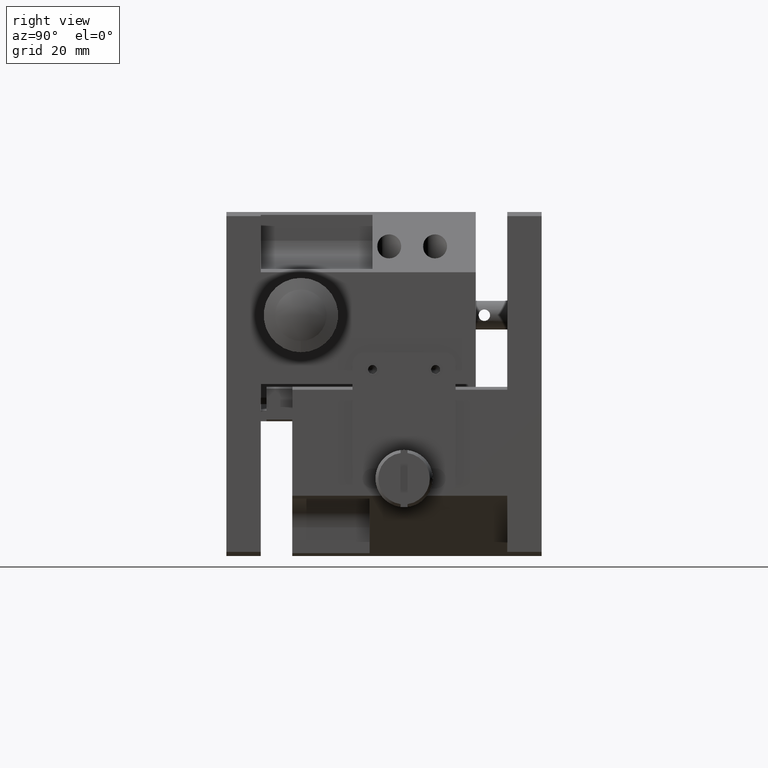
[diagram: clean part render]
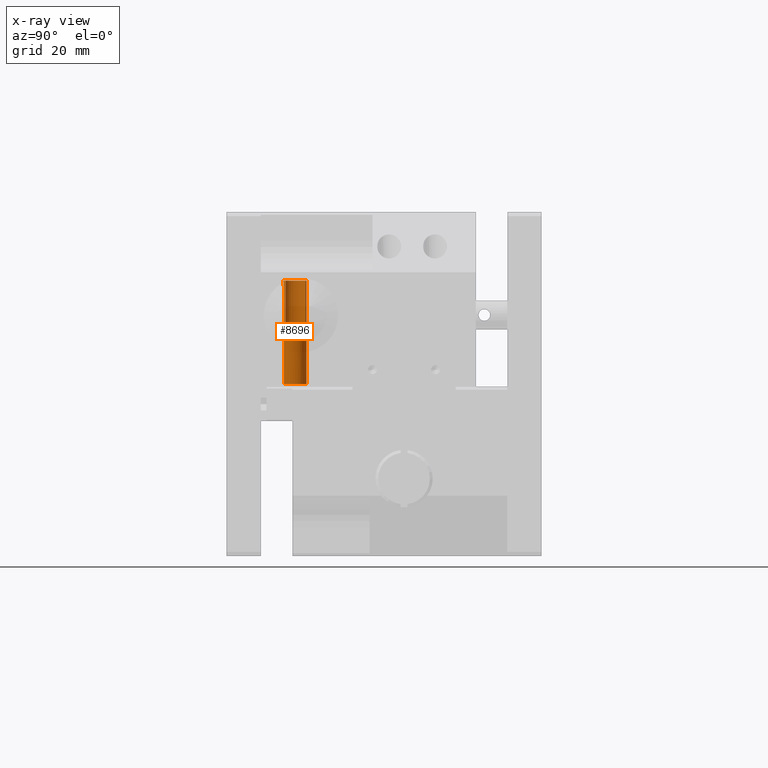
[diagram: x-ray — body ghosted, one internal face saturated and labeled with its STEP entity id]
A machine part, right view, then the same camera in x-ray: the body is ghosted and one INTERNAL B-rep face — a face not visible from any outside direction — is saturated and labeled: STEP entity #8696.
In plain terms, the highlighted cylindrical surface (bore or boss wall) has radius 2 mm, axis along (0, 0, 1).
Its self-contained STEP definition (entity closure, byte-faithful):
#281 = FACE_OUTER_BOUND ( 'NONE', #12027, .T. ) ;
#478 = CARTESIAN_POINT ( 'NONE',  ( 9.499999999999994671, 10.26794919243111792, -22.00000000000000000 ) ) ;
#660 = CARTESIAN_POINT ( 'NONE',  ( 9.499999999999994671, 13.73205080756888208, -22.00000000000000000 ) ) ;
#824 = LINE ( 'NONE', #884, #11925 ) ;
#884 = CARTESIAN_POINT ( 'NONE',  ( 9.499999999999989342, 10.26794919243111615, -12.00000000000000000 ) ) ;
#916 = FACE_OUTER_BOUND ( 'NONE', #9791, .T. ) ;
#1656 = CARTESIAN_POINT ( 'NONE',  ( 9.499999999999996447, 13.73205080756888030, -12.00000000000000000 ) ) ;
#1721 = CIRCLE ( 'NONE', #8592, 2.000000000000000000 ) ;
#1735 = CIRCLE ( 'NONE', #9204, 2.000000000000000000 ) ;
#2077 = DIRECTION ( 'NONE',  ( 1.000000000000000000, 0.000000000000000000, 0.000000000000000000 ) ) ;
#2133 = EDGE_CURVE ( 'NONE', #10056, #3598, #4046, .T. ) ;
#2151 = DIRECTION ( 'NONE',  ( -0.000000000000000000, -0.000000000000000000, -1.000000000000000000 ) ) ;
#2553 = VERTEX_POINT ( 'NONE', #3729 ) ;
#3598 = VERTEX_POINT ( 'NONE', #660 ) ;
#3729 = CARTESIAN_POINT ( 'NONE',  ( 9.499999999999994671, 10.26794919243111970, -12.00000000000000000 ) ) ;
#3835 = ORIENTED_EDGE ( 'NONE', *, *, #4782, .T. ) ;
#3990 = EDGE_CURVE ( 'NONE', #8640, #2553, #1721, .T. ) ;
#4046 = CIRCLE ( 'NONE', #11130, 2.000000000000000000 ) ;
#4470 = CARTESIAN_POINT ( 'NONE',  ( 10.50000000000000000, 12.00000000000000000, -30.00000000000000000 ) ) ;
#4782 = EDGE_CURVE ( 'NONE', #7353, #7353, #1735, .T. ) ;
#4862 = CARTESIAN_POINT ( 'NONE',  ( 8.500000000000000000, 12.00000000000000000, -12.00000000000000000 ) ) ;
#5613 = CARTESIAN_POINT ( 'NONE',  ( 9.499999999999991118, 13.73205080756888385, -12.00000000000000000 ) ) ;
#5835 = CYLINDRICAL_SURFACE ( 'NONE', #11330, 2.000000000000000000 ) ;
#6187 = CARTESIAN_POINT ( 'NONE',  ( 8.500000000000000000, 12.00000000000000000, -12.00000000000000000 ) ) ;
#6793 = ORIENTED_EDGE ( 'NONE', *, *, #3990, .T. ) ;
#7060 = EDGE_CURVE ( 'NONE', #8640, #3598, #8383, .T. ) ;
#7353 = VERTEX_POINT ( 'NONE', #4470 ) ;
#7568 = ORIENTED_EDGE ( 'NONE', *, *, #9393, .F. ) ;
#7869 = DIRECTION ( 'NONE',  ( 1.000000000000000000, 0.000000000000000000, 0.000000000000000000 ) ) ;
#8032 = DIRECTION ( 'NONE',  ( 0.000000000000000000, 0.000000000000000000, 1.000000000000000000 ) ) ;
#8164 = VECTOR ( 'NONE', #9367, 1000.000000000000000 ) ;
#8383 = LINE ( 'NONE', #5613, #8164 ) ;
#8541 = DIRECTION ( 'NONE',  ( 0.000000000000000000, 0.000000000000000000, 1.000000000000000000 ) ) ;
#8592 = AXIS2_PLACEMENT_3D ( 'NONE', #6187, #8032, #11788 ) ;
#8640 = VERTEX_POINT ( 'NONE', #1656 ) ;
#8696 = ADVANCED_FACE ( 'NONE', ( #916, #281 ), #5835, .F. ) ;
#8956 = DIRECTION ( 'NONE',  ( 1.000000000000000000, 0.000000000000000000, 0.000000000000000000 ) ) ;
#9204 = AXIS2_PLACEMENT_3D ( 'NONE', #10769, #2151, #7869 ) ;
#9261 = DIRECTION ( 'NONE',  ( 0.000000000000000000, 0.000000000000000000, 1.000000000000000000 ) ) ;
#9367 = DIRECTION ( 'NONE',  ( -0.000000000000000000, -0.000000000000000000, -1.000000000000000000 ) ) ;
#9393 = EDGE_CURVE ( 'NONE', #10056, #2553, #824, .T. ) ;
#9791 = EDGE_LOOP ( 'NONE', ( #7568, #11105, #10923, #6793 ) ) ;
#10056 = VERTEX_POINT ( 'NONE', #478 ) ;
#10460 = DIRECTION ( 'NONE',  ( 0.000000000000000000, 0.000000000000000000, 1.000000000000000000 ) ) ;
#10769 = CARTESIAN_POINT ( 'NONE',  ( 8.500000000000000000, 12.00000000000000000, -30.00000000000000000 ) ) ;
#10923 = ORIENTED_EDGE ( 'NONE', *, *, #7060, .F. ) ;
#11105 = ORIENTED_EDGE ( 'NONE', *, *, #2133, .T. ) ;
#11130 = AXIS2_PLACEMENT_3D ( 'NONE', #11785, #10460, #8956 ) ;
#11330 = AXIS2_PLACEMENT_3D ( 'NONE', #4862, #8541, #2077 ) ;
#11785 = CARTESIAN_POINT ( 'NONE',  ( 8.500000000000000000, 12.00000000000000000, -22.00000000000000000 ) ) ;
#11788 = DIRECTION ( 'NONE',  ( 1.000000000000000000, 0.000000000000000000, 0.000000000000000000 ) ) ;
#11925 = VECTOR ( 'NONE', #9261, 1000.000000000000000 ) ;
#12027 = EDGE_LOOP ( 'NONE', ( #3835 ) ) ;